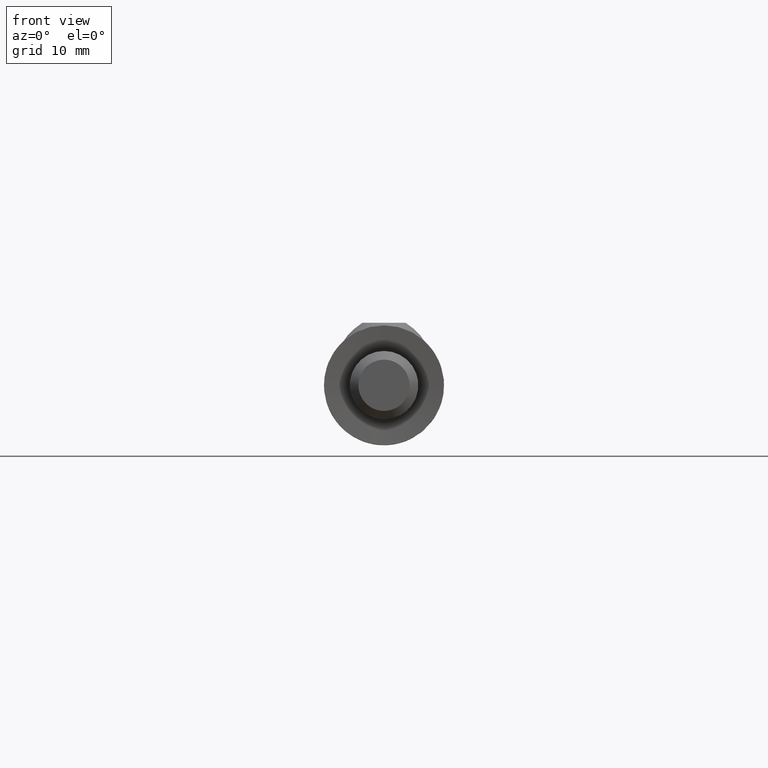
[diagram: clean part render]
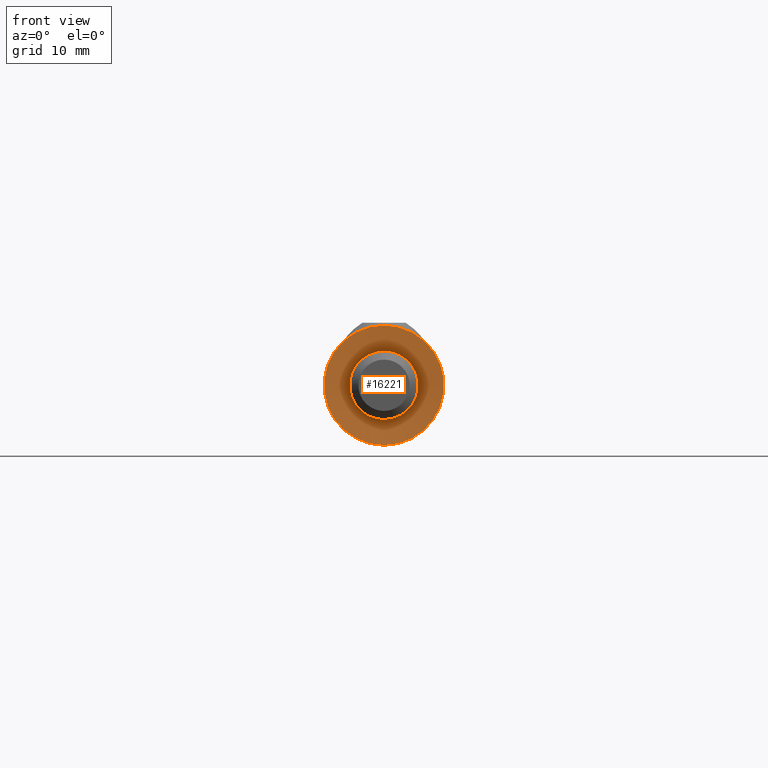
[diagram: same view with one face highlighted and labeled with its STEP entity id]
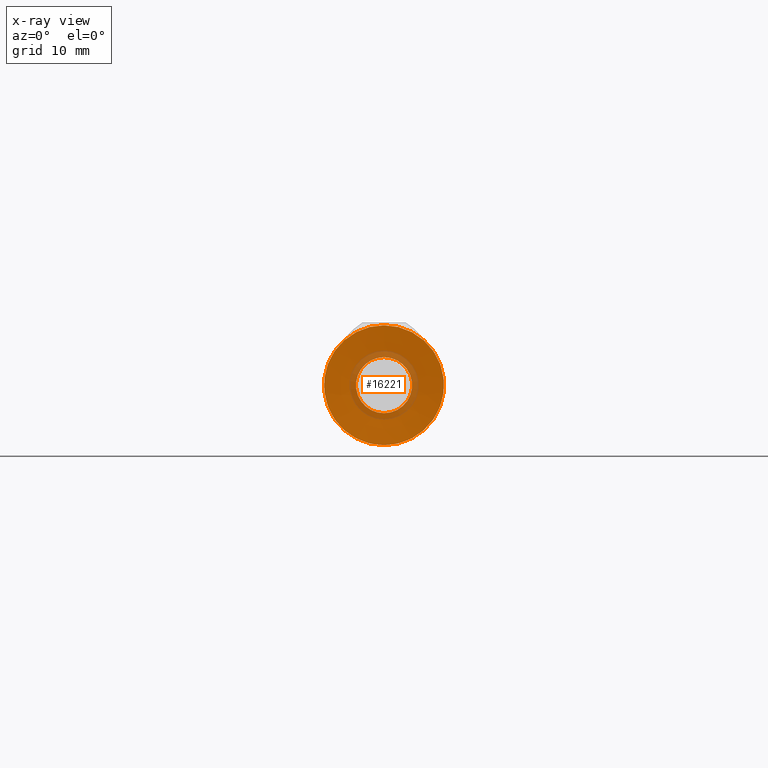
[diagram: x-ray of the same camera — body ghosted, the highlighted face saturated]
A machine part, front view. The second image highlights one B-rep face of the part: STEP entity #16221.
The next image is the same camera in x-ray: the body ghosted, the highlighted face saturated — about 14% of this face is hidden behind the body in this view.
In plain terms, the highlighted conical surface has half-angle 85 deg.
Its self-contained STEP definition (entity closure, byte-faithful):
#633 = VERTEX_POINT ( 'NONE', #11373 ) ;
#1358 = ORIENTED_EDGE ( 'NONE', *, *, #6402, .T. ) ;
#2465 = DIRECTION ( 'NONE',  ( -0.000000000000000000, -1.000000000000000000, -0.000000000000000000 ) ) ;
#2602 = EDGE_LOOP ( 'NONE', ( #5066 ) ) ;
#3104 = DIRECTION ( 'NONE',  ( -0.000000000000000000, -1.000000000000000000, -0.000000000000000000 ) ) ;
#3213 = DIRECTION ( 'NONE',  ( 0.000000000000000000, 0.000000000000000000, -1.000000000000000000 ) ) ;
#4110 = CARTESIAN_POINT ( 'NONE',  ( 0.000000000000000000, 0.000000000000000000, 0.000000000000000000 ) ) ;
#5066 = ORIENTED_EDGE ( 'NONE', *, *, #6177, .F. ) ;
#6032 = DIRECTION ( 'NONE',  ( 0.000000000000000000, 0.000000000000000000, -1.000000000000000000 ) ) ;
#6163 = EDGE_LOOP ( 'NONE', ( #1358 ) ) ;
#6177 = EDGE_CURVE ( 'NONE', #633, #633, #16760, .T. ) ;
#6402 = EDGE_CURVE ( 'NONE', #10687, #10687, #10830, .T. ) ;
#6426 = FACE_OUTER_BOUND ( 'NONE', #6163, .T. ) ;
#8813 = AXIS2_PLACEMENT_3D ( 'NONE', #4110, #2465, #14053 ) ;
#8814 = CARTESIAN_POINT ( 'NONE',  ( 0.000000000000000000, 0.3261762033592882082, 0.000000000000000000 ) ) ;
#10687 = VERTEX_POINT ( 'NONE', #15733 ) ;
#10745 = CONICAL_SURFACE ( 'NONE', #16229, 3.271788935686913202, 1.483529864195187287 ) ;
#10830 = CIRCLE ( 'NONE', #8813, 7.000000000000000000 ) ;
#11373 = CARTESIAN_POINT ( 'NONE',  ( 0.000000000000000000, 0.3261762033592882082, -3.271788935686913202 ) ) ;
#13192 = DIRECTION ( 'NONE',  ( -0.000000000000000000, -1.000000000000000000, -0.000000000000000000 ) ) ;
#14053 = DIRECTION ( 'NONE',  ( 0.000000000000000000, 0.000000000000000000, -1.000000000000000000 ) ) ;
#15733 = CARTESIAN_POINT ( 'NONE',  ( 0.000000000000000000, 0.000000000000000000, -7.000000000000000000 ) ) ;
#16003 = FACE_BOUND ( 'NONE', #2602, .T. ) ;
#16221 = ADVANCED_FACE ( 'NONE', ( #6426, #16003 ), #10745, .F. ) ;
#16229 = AXIS2_PLACEMENT_3D ( 'NONE', #8814, #13192, #3213 ) ;
#16300 = CARTESIAN_POINT ( 'NONE',  ( 0.000000000000000000, 0.3261762033592882082, 0.000000000000000000 ) ) ;
#16760 = CIRCLE ( 'NONE', #18348, 3.271788935686913202 ) ;
#18348 = AXIS2_PLACEMENT_3D ( 'NONE', #16300, #3104, #6032 ) ;